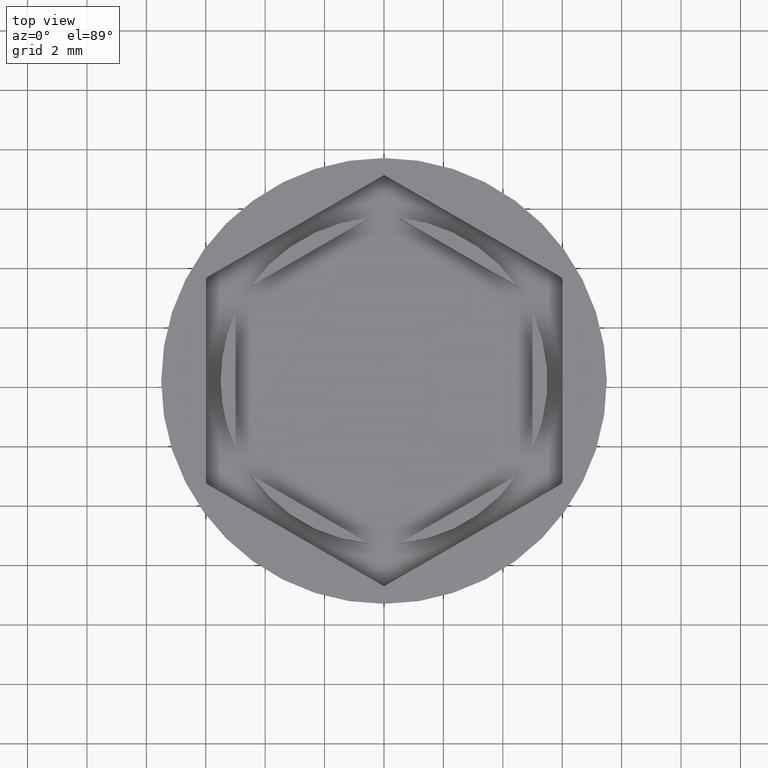
[diagram: clean part render]
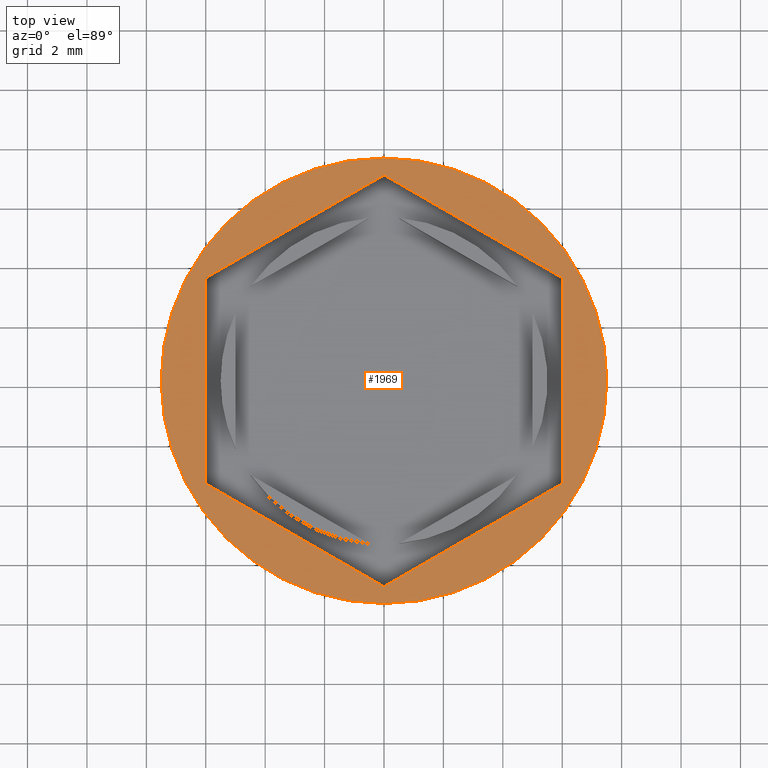
[diagram: same view with one face highlighted and labeled with its STEP entity id]
A machine part, top view. The second image highlights one B-rep face of the part: STEP entity #1969.
In plain terms, the highlighted planar face has unit normal (0, -0, 1).
Its self-contained STEP definition (entity closure, byte-faithful):
#7 = ORIENTED_EDGE ( 'NONE', *, *, #1189, .T. ) ;
#29 = VERTEX_POINT ( 'NONE', #1641 ) ;
#84 = EDGE_CURVE ( 'NONE', #1457, #871, #1011, .T. ) ;
#174 = CARTESIAN_POINT ( 'NONE',  ( -6.000000000000000000, -3.464101615137755719, 0.000000000000000000 ) ) ;
#193 = VERTEX_POINT ( 'NONE', #1626 ) ;
#205 = ORIENTED_EDGE ( 'NONE', *, *, #363, .T. ) ;
#247 = CARTESIAN_POINT ( 'NONE',  ( -3.394223061414856671E-17, -6.928203230275509661, 0.000000000000000000 ) ) ;
#353 = AXIS2_PLACEMENT_3D ( 'NONE', #1894, #1450, #1904 ) ;
#363 = EDGE_CURVE ( 'NONE', #735, #193, #1728, .T. ) ;
#377 = FACE_BOUND ( 'NONE', #661, .T. ) ;
#466 = DIRECTION ( 'NONE',  ( 1.000000000000000000, 0.000000000000000000, 0.000000000000000000 ) ) ;
#535 = LINE ( 'NONE', #552, #1265 ) ;
#538 = EDGE_CURVE ( 'NONE', #871, #29, #1019, .T. ) ;
#545 = PLANE ( 'NONE',  #1546 ) ;
#552 = CARTESIAN_POINT ( 'NONE',  ( -5.999999999999999112, 3.464101615137752610, 0.000000000000000000 ) ) ;
#558 = ORIENTED_EDGE ( 'NONE', *, *, #538, .F. ) ;
#615 = VECTOR ( 'NONE', #1815, 1000.000000000000114 ) ;
#616 = VECTOR ( 'NONE', #1479, 1000.000000000000000 ) ;
#617 = CARTESIAN_POINT ( 'NONE',  ( 0.000000000000000000, 6.928203230275509661, 0.000000000000000000 ) ) ;
#628 = EDGE_CURVE ( 'NONE', #1332, #1457, #535, .T. ) ;
#655 = ORIENTED_EDGE ( 'NONE', *, *, #84, .F. ) ;
#661 = EDGE_LOOP ( 'NONE', ( #726, #1403, #558, #655, #847, #1694 ) ) ;
#665 = FACE_OUTER_BOUND ( 'NONE', #1344, .T. ) ;
#707 = VECTOR ( 'NONE', #1494, 1000.000000000000227 ) ;
#722 = DIRECTION ( 'NONE',  ( 0.8660254037844387076, -0.4999999999999999445, 0.000000000000000000 ) ) ;
#724 = EDGE_CURVE ( 'NONE', #856, #1861, #1938, .T. ) ;
#726 = ORIENTED_EDGE ( 'NONE', *, *, #724, .F. ) ;
#735 = VERTEX_POINT ( 'NONE', #1345 ) ;
#765 = CARTESIAN_POINT ( 'NONE',  ( 0.000000000000000000, 0.000000000000000000, 0.000000000000000000 ) ) ;
#800 = VECTOR ( 'NONE', #722, 1000.000000000000000 ) ;
#825 = CARTESIAN_POINT ( 'NONE',  ( -3.394223061414856671E-17, -6.928203230275509661, 0.000000000000000000 ) ) ;
#847 = ORIENTED_EDGE ( 'NONE', *, *, #628, .F. ) ;
#856 = VERTEX_POINT ( 'NONE', #1305 ) ;
#871 = VERTEX_POINT ( 'NONE', #825 ) ;
#918 = CARTESIAN_POINT ( 'NONE',  ( -5.999999999999999112, 3.464101615137752610, 0.000000000000000000 ) ) ;
#1009 = EDGE_CURVE ( 'NONE', #29, #856, #1371, .T. ) ;
#1011 = LINE ( 'NONE', #1498, #800 ) ;
#1019 = LINE ( 'NONE', #247, #616 ) ;
#1074 = CARTESIAN_POINT ( 'NONE',  ( 6.000000000000000000, 3.464101615137757051, 0.000000000000000000 ) ) ;
#1134 = DIRECTION ( 'NONE',  ( -1.251928832280966188E-16, -1.000000000000000000, 0.000000000000000000 ) ) ;
#1174 = DIRECTION ( 'NONE',  ( 1.000000000000000000, 0.000000000000000000, 0.000000000000000000 ) ) ;
#1189 = EDGE_CURVE ( 'NONE', #193, #735, #1830, .T. ) ;
#1245 = DIRECTION ( 'NONE',  ( 0.000000000000000000, 1.000000000000000000, 0.000000000000000000 ) ) ;
#1265 = VECTOR ( 'NONE', #1134, 1000.000000000000000 ) ;
#1305 = CARTESIAN_POINT ( 'NONE',  ( 6.000000000000000000, 3.464101615137757051, 0.000000000000000000 ) ) ;
#1310 = CARTESIAN_POINT ( 'NONE',  ( 0.000000000000000000, 0.000000000000000000, 0.000000000000000000 ) ) ;
#1332 = VERTEX_POINT ( 'NONE', #918 ) ;
#1344 = EDGE_LOOP ( 'NONE', ( #7, #205 ) ) ;
#1345 = CARTESIAN_POINT ( 'NONE',  ( -7.500000000000000000, 9.184850993605147944E-16, 0.000000000000000000 ) ) ;
#1371 = LINE ( 'NONE', #1408, #1468 ) ;
#1377 = CARTESIAN_POINT ( 'NONE',  ( 0.000000000000000000, 6.928203230275509661, 0.000000000000000000 ) ) ;
#1384 = DIRECTION ( 'NONE',  ( -0.000000000000000000, -0.000000000000000000, 1.000000000000000000 ) ) ;
#1403 = ORIENTED_EDGE ( 'NONE', *, *, #1009, .F. ) ;
#1408 = CARTESIAN_POINT ( 'NONE',  ( 6.000000000000000000, -3.464101615137753942, 0.000000000000000000 ) ) ;
#1450 = DIRECTION ( 'NONE',  ( -0.000000000000000000, -0.000000000000000000, 1.000000000000000000 ) ) ;
#1457 = VERTEX_POINT ( 'NONE', #174 ) ;
#1464 = DIRECTION ( 'NONE',  ( 0.000000000000000000, -0.000000000000000000, 1.000000000000000000 ) ) ;
#1468 = VECTOR ( 'NONE', #1245, 1000.000000000000000 ) ;
#1479 = DIRECTION ( 'NONE',  ( 0.8660254037844385966, 0.5000000000000001110, 0.000000000000000000 ) ) ;
#1494 = DIRECTION ( 'NONE',  ( -0.8660254037844387076, 0.4999999999999997780, 0.000000000000000000 ) ) ;
#1498 = CARTESIAN_POINT ( 'NONE',  ( -6.000000000000000000, -3.464101615137755719, 0.000000000000000000 ) ) ;
#1546 = AXIS2_PLACEMENT_3D ( 'NONE', #1310, #1464, #1174 ) ;
#1626 = CARTESIAN_POINT ( 'NONE',  ( 7.500000000000000000, 0.000000000000000000, 0.000000000000000000 ) ) ;
#1641 = CARTESIAN_POINT ( 'NONE',  ( 6.000000000000000000, -3.464101615137753942, 0.000000000000000000 ) ) ;
#1694 = ORIENTED_EDGE ( 'NONE', *, *, #1697, .F. ) ;
#1697 = EDGE_CURVE ( 'NONE', #1861, #1332, #1992, .T. ) ;
#1728 = CIRCLE ( 'NONE', #1980, 7.500000000000000000 ) ;
#1815 = DIRECTION ( 'NONE',  ( -0.8660254037844383745, -0.5000000000000003331, 0.000000000000000000 ) ) ;
#1830 = CIRCLE ( 'NONE', #353, 7.500000000000000000 ) ;
#1861 = VERTEX_POINT ( 'NONE', #617 ) ;
#1894 = CARTESIAN_POINT ( 'NONE',  ( 0.000000000000000000, 0.000000000000000000, 0.000000000000000000 ) ) ;
#1904 = DIRECTION ( 'NONE',  ( 1.000000000000000000, 0.000000000000000000, 0.000000000000000000 ) ) ;
#1938 = LINE ( 'NONE', #1074, #707 ) ;
#1969 = ADVANCED_FACE ( 'NONE', ( #377, #665 ), #545, .T. ) ;
#1980 = AXIS2_PLACEMENT_3D ( 'NONE', #765, #1384, #466 ) ;
#1992 = LINE ( 'NONE', #1377, #615 ) ;